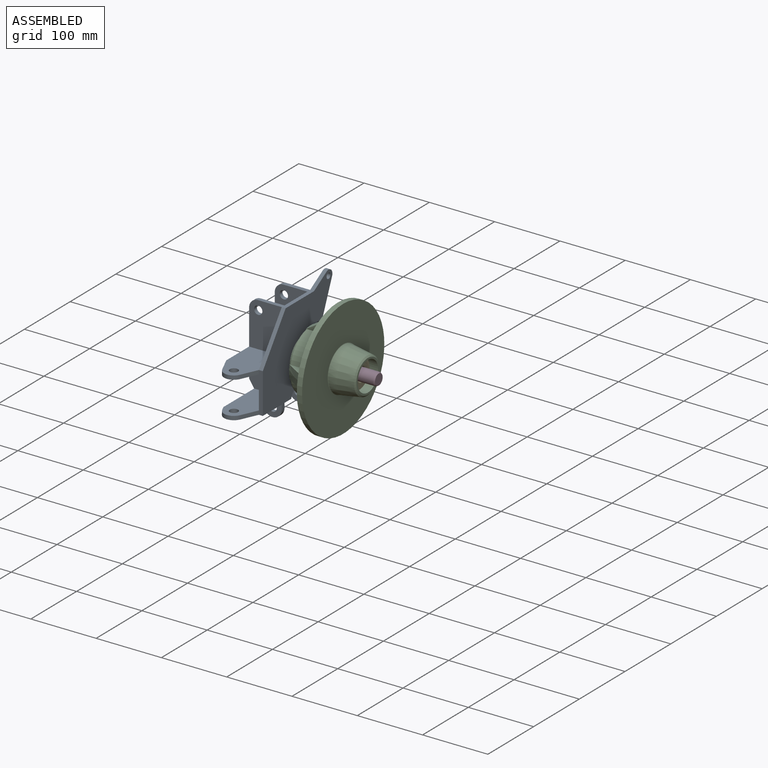
[diagram: assembled view]
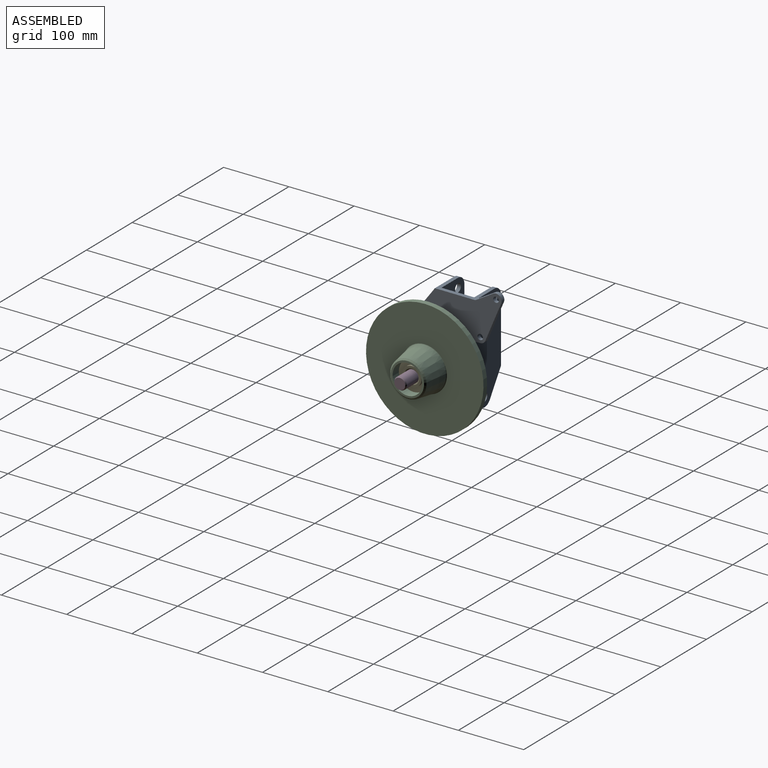
[diagram: assembled view, second angle]
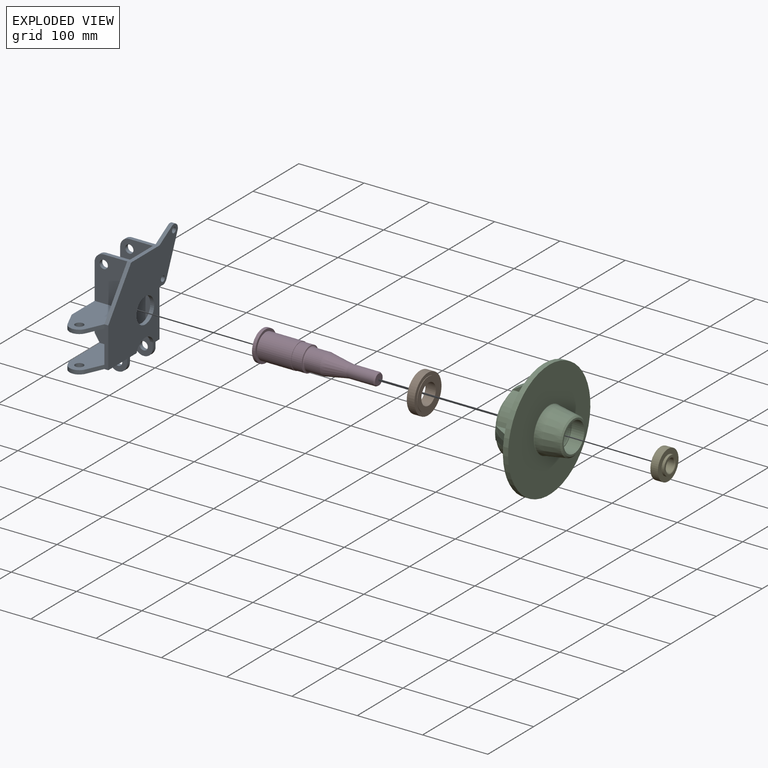
[diagram: exploded view]
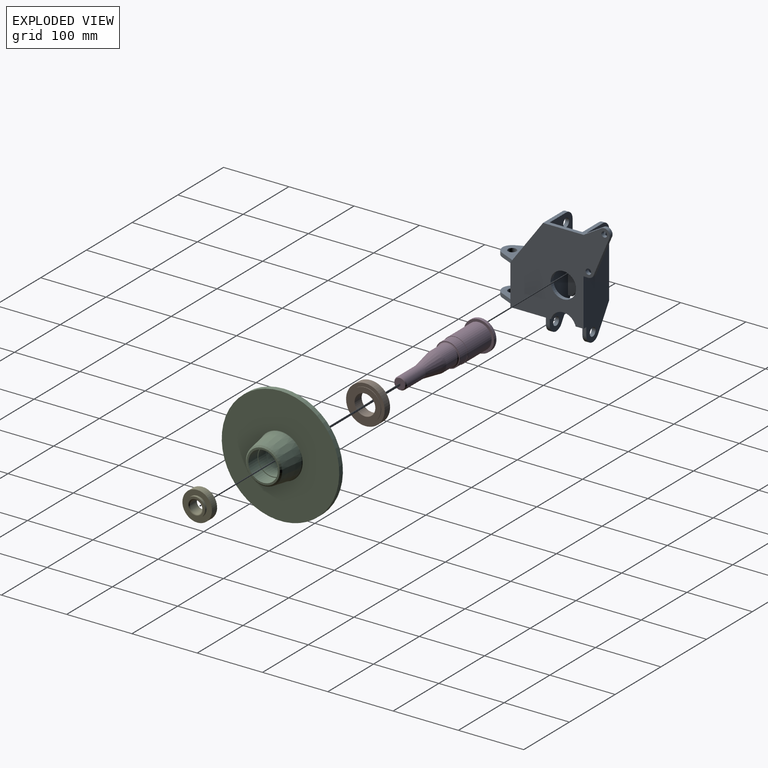
[diagram: exploded view, second angle]
ASSEMBLY  parts=5 mates=4
PART A: 59 faces, bbox 56x186.2x173.6 mm
  f0: plane 156x50mm, normal (0,1,0), area 6373.4mm2, adj f11,f12,f26,f31,f33,f39,f40,f41
  f1: plane 156x50mm, normal (0,-1,0), area 6373.4mm2, adj f12,f25,f26,f32,f34,f35,f36,f37
  f2: cylinder r=15mm len=27.36mm, axis (0,0,-1), area 206.5mm2, adj f3,f5,f29,f40,f48
  f3: plane 7.96x5.56mm, normal (-0.91,-0.41,0), area 24.3mm2, adj f2,f29,f40
  f4: plane 62x6mm, normal (0,-1,0), area 372mm2, adj f5,f14,f24,f30,f47,f48
  f5: plane 96.15x44.39mm, normal (0,0,-1), area 3163.4mm2, adj f2,f4,f15,f24,f26,f40,f41,f42
  f6: plane 50x50mm, normal (0,-1,0), area 2453.6mm2, adj f11,f28,f29,f30,f40
  f7: plane 156x56mm, normal (0,1,0), area 7264.6mm2, adj f10,f12,f13,f16,f24,f25,f32,f34
  f8: plane 68x50mm, normal (-1,0,0), area 1700mm2, adj f9,f14,f27
  f9: plane 68x50mm, normal (0,-1,0), area 3231.3mm2, adj f8,f11,f12,f27,f31,f33
  f10: plane 12.15x6mm, normal (0,0,-1), area 72.9mm2, adj f7,f15,f24,f26,f36
  f11: plane 98x56mm, normal (-1,0,0), area 888mm2, adj f0,f6,f9,f27,f28,f31,f40,f44
  f12: plane 62x42mm, normal (0,0,1), area 804mm2, adj f0,f1,f7,f9,f14,f20,f24,f26
  f13: plane 75.11x40.22mm, normal (-1,0,0), area 1744.4mm2, adj f7,f16,f17,f18,f19,f20,f21,f23
  f14: plane 68x50mm, normal (0,-0.81,0.59), area 506.4mm2, adj f4,f8,f12,f24
  f15: cylinder r=19.5mm len=37.7mm, axis (1,0,0), area 306.9mm2, adj f5,f10,f24,f26
  f16: plane 6.98x6mm, normal (0,0,-1), area 41.9mm2, adj f7,f13,f17,f24
  f17: cylinder r=8.5mm len=8.25mm, axis (1,0,0), area 62.4mm2, adj f13,f16,f18,f24
  f18: plane 57.66x24.13mm, normal (0,0.92,-0.39), area 375mm2, adj f13,f17,f19,f24
  f19: cylinder r=8.5mm len=12.88mm, axis (1,0,0), area 130.9mm2, adj f13,f18,f20,f24
  f20: plane 27.34x16.42mm, normal (0,-0.51,0.86), area 191.4mm2, adj f12,f13,f19,f24
  f21: cylinder r=4.25mm len=8.5mm, axis (1,0,0), area 160.2mm2, adj f13,f24
  f22: cylinder r=19.5mm len=39mm, axis (1,0,0), area 735.1mm2, adj f24,f26
  f23: cylinder r=4.25mm len=8.5mm, axis (1,0,0), area 160.2mm2, adj f13,f24
  f24: plane 152.22x147.63mm, normal (1,0,0), area 13005.4mm2, adj f4,f5,f7,f10,f12,f14,f15,f16
  f25: plane 98x6mm, normal (-1,0,0), area 588mm2, adj f1,f7,f32,f35
  f26: plane 130x50mm, normal (-1,0,0), area 4901mm2, adj f0,f1,f5,f10,f12,f15,f22
  f27: plane 84x50mm, normal (0,0,1), area 3520.4mm2, adj f8,f9,f11,f44,f45,f46,f47
  f28: plane 84x50mm, normal (0,0,-1), area 3520.4mm2, adj f6,f11,f30,f44,f45,f46,f47
  f29: plane 84x42.26mm, normal (0,0,1), area 3067mm2, adj f2,f3,f6,f30,f40,f48,f49
  f30: plane 50x50mm, normal (-1,0,0), area 2500mm2, adj f4,f6,f28,f29
  f31: cylinder r=14mm len=14mm, axis (0,-1,0), area 131.9mm2, adj f0,f9,f11,f12
  f32: cylinder r=14mm len=14mm, axis (0,-1,0), area 131.9mm2, adj f1,f7,f12,f25
  f33: cylinder r=6.35mm len=12.7mm, axis (0,1,0), area 239.4mm2, adj f0,f9
  f34: cylinder r=6.35mm len=12.7mm, axis (0,1,0), area 239.4mm2, adj f1,f7
  f35: plane 37.59x24.23mm, normal (-0.84,0,-0.54), area 268.3mm2, adj f1,f7,f25,f37
  f36: plane 12x6mm, normal (1,0,0), area 72mm2, adj f1,f7,f10,f37
  f37: cylinder r=14mm len=25.77mm, axis (0,1,0), area 215.8mm2, adj f1,f7,f35,f36
  f38: cylinder r=6.35mm len=12.7mm, axis (0,1,0), area 239.4mm2, adj f1,f7
  f39: cylinder r=14mm len=25.77mm, axis (0,1,0), area 215.8mm2, adj f0,f40,f41,f42
  f40: plane 81.76x37.6mm, normal (-0.84,0,-0.54), area 778.7mm2, adj f0,f2,f3,f5,f6,f11,f29,f39
  f41: plane 12x6mm, normal (1,0,0), area 72mm2, adj f0,f5,f39,f42
  f42: plane 38.39x26mm, normal (0,-1,0), area 602.6mm2, adj f5,f39,f40,f41,f43
  f43: cylinder r=6.35mm len=12.7mm, axis (0,1,0), area 239.4mm2, adj f0,f42
  f44: plane 25.16x11.32mm, normal (-0.91,-0.41,0), area 165.5mm2, adj f11,f27,f28,f45
  f45: cylinder r=15mm len=27.36mm, axis (0,0,1), area 206.6mm2, adj f27,f28,f44,f47
  f46: cylinder r=6.35mm len=12.7mm, axis (0,0,1), area 239.4mm2, adj f27,f28
  f47: plane 25.16x11.32mm, normal (0.91,-0.41,0), area 165.5mm2, adj f4,f27,f28,f45
  f48: plane 25.16x11.32mm, normal (0.91,-0.41,0), area 165.5mm2, adj f2,f4,f5,f29
  f49: cylinder r=6.35mm len=12.7mm, axis (0,0,-1), area 239.4mm2, adj f5,f29
  f50: plane 6.8x6mm, normal (0,0,-1), area 40.8mm2, adj f1,f55,f57,f58
  f51: plane 6.8x6mm, normal (0,0,1), area 40.8mm2, adj f1,f52,f57,f58
  f52: cylinder r=19.5mm len=36.4mm, axis (-1,0,0), area 281.6mm2, adj f51,f53,f57,f58
  f53: plane 6.8x6mm, normal (0,0,1), area 40.8mm2, adj f0,f52,f57,f58
  f54: plane 6.8x6mm, normal (0,0,-1), area 40.8mm2, adj f0,f55,f57,f58
  f55: cylinder r=19.5mm len=36.4mm, axis (-1,0,0), area 281.6mm2, adj f50,f54,f57,f58
  f56: cylinder r=19.5mm len=39mm, axis (-1,0,0), area 735.1mm2, adj f57,f58
  f57: plane 76x50mm, normal (1,0,0), area 1944.9mm2, adj f0,f1,f50,f51,f52,f53,f54,f55
  f58: plane 76x50mm, normal (-1,0,0), area 1944.9mm2, adj f0,f1,f50,f51,f52,f53,f54,f55
PART B: 9 faces, bbox 16.8x59.1x59.1 mm
  f0: plane 41.92x41.92mm, normal (-1,0,0), area 376mm2, adj f7,f8
  f1: cylinder r=15.88mm len=31.75mm, axis (-1,0,0), area 1472.6mm2, adj f2,f8
  f2: plane 48.55x48.55mm, normal (1,0,0), area 1059.4mm2, adj f1,f3
  f3: cylinder r=24.27mm len=48.55mm, axis (-1,0,0), area 135.6mm2, adj f2,f4
  f4: plane 59.13x59.13mm, normal (1,0,0), area 895mm2, adj f3,f5
  f5: cylinder r=29.57mm len=59.13mm, axis (-1,0,0), area 2194.1mm2, adj f4,f6
  f6: plane 59.13x59.13mm, normal (-1,0,0), area 1366.3mm2, adj f5,f7
  f7: cylinder r=20.96mm len=41.92mm, axis (-1,0,0), area 535.1mm2, adj f0,f6
  f8: torus R=17.88mm, axis (1,0,0), area 327.7mm2, adj f0,f1
PART C: 61 faces, bbox 97.2x180.2x180.2 mm
  f0: cone r=47mm half-angle=30.7deg, axis (1,0,0), area 925.6mm2, adj f4,f35,f39,f40,f41,f42
  f1: cone r=47mm half-angle=30.7deg, axis (1,0,0), area 925.6mm2, adj f4,f32,f36,f45,f47,f49
  f2: cone r=47mm half-angle=30.7deg, axis (1,0,0), area 925.6mm2, adj f4,f30,f33,f53,f54,f55
  f3: cone r=47mm half-angle=30.7deg, axis (1,0,0), area 925.6mm2, adj f4,f28,f38,f46,f48,f50
  f4: plane 94x94mm, normal (-1,0,0), area 2900.8mm2, adj f0,f1,f2,f3,f5,f20,f22,f24
  f5: cylinder r=33mm len=66mm, axis (-1,0,0), area 1866.1mm2, adj f4,f6
  f6: plane 66x66mm, normal (-1,0,0), area 673.8mm2, adj f5,f7
  f7: cylinder r=29.57mm len=59.15mm, axis (-1,0,0), area 4552.3mm2, adj f6,f8
  f8: plane 59.15x59.15mm, normal (-1,0,0), area 284.4mm2, adj f7,f9
  f9: cylinder r=28mm len=56mm, axis (-1,0,0), area 2638.9mm2, adj f8,f10
  f10: cone r=21.5mm half-angle=17.2deg, axis (-1,0,0), area 3418.5mm2, adj f9,f11
  f11: cylinder r=21.5mm len=43mm, axis (-1,0,0), area 2229mm2, adj f10,f12
  f12: plane 45.25x45.25mm, normal (1,0,0), area 155.6mm2, adj f11,f13
  f13: cylinder r=22.62mm len=45.25mm, axis (-1,0,0), area 2842.8mm2, adj f12,f14
  f14: plane 50.95x50.95mm, normal (1,0,0), area 431.3mm2, adj f13,f19
  f15: cone r=33.43mm half-angle=8.9deg, axis (-1,0,0), area 6833.7mm2, adj f19,f60
  f16: plane 180x180mm, normal (1,0,0), area 21753.2mm2, adj f17,f60
  f17: cylinder r=90mm len=180mm, axis (-1,0,0), area 4523.9mm2, adj f16,f18
  f18: plane 180x180mm, normal (-1,0,0), area 14195.3mm2, adj f17,f40,f41,f42,f43,f44,f45,f46
  f19: cone r=27.79mm half-angle=49.5deg, axis (-1,0,0), area 508.6mm2, adj f14,f15
  f20: cylinder r=4mm len=20mm, axis (-1,0,0), area 502.7mm2, adj f4,f21
  f21: plane 8x8mm, normal (-1,0,0), area 50.3mm2, adj f20
  f22: cylinder r=4mm len=20mm, axis (-1,0,0), area 502.7mm2, adj f4,f23
  f23: plane 8x8mm, normal (-1,0,0), area 50.3mm2, adj f22
  f24: cylinder r=4mm len=20mm, axis (-1,0,0), area 502.7mm2, adj f4,f25
  f25: plane 8x8mm, normal (-1,0,0), area 50.3mm2, adj f24
  f26: cylinder r=4mm len=20mm, axis (-1,0,0), area 502.7mm2, adj f4,f27
  f27: plane 8x8mm, normal (-1,0,0), area 50.3mm2, adj f26
  f28: plane 37.2x24.53mm, normal (0,-1,0), area 413.9mm2, adj f3,f4,f29,f50,f59
  f29: cylinder r=47mm len=35.92mm, axis (-1,0,0), area 1878.6mm2, adj f28,f30,f52,f59
  f30: plane 37.2x24.53mm, normal (0,0,1), area 413.9mm2, adj f2,f4,f29,f54,f59
  f31: cylinder r=47mm len=35.92mm, axis (-1,0,0), area 1878.6mm2, adj f32,f33,f51,f56
  f32: plane 37.2x24.53mm, normal (0,-1,0), area 413.9mm2, adj f1,f4,f31,f49,f56
  f33: plane 37.2x24.53mm, normal (0,0,-1), area 413.9mm2, adj f2,f4,f31,f53,f56
  f34: cylinder r=47mm len=35.92mm, axis (-1,0,0), area 1878.6mm2, adj f35,f36,f43,f57
  f35: plane 37.2x24.53mm, normal (0,0,-1), area 413.9mm2, adj f0,f4,f34,f41,f57
  f36: plane 37.2x24.53mm, normal (0,1,0), area 413.9mm2, adj f1,f4,f34,f45,f57
  f37: cylinder r=47mm len=35.92mm, axis (-1,0,0), area 1878.6mm2, adj f38,f39,f44,f58
  f38: plane 37.2x24.53mm, normal (0,1,0), area 413.9mm2, adj f3,f4,f37,f46,f58
  f39: plane 37.2x24.53mm, normal (0,0,1), area 413.9mm2, adj f0,f4,f37,f42,f58
  f40: torus R=74.75mm, axis (-1,0,0), area 131.5mm2, adj f0,f18,f41,f42
  f41: cylinder r=5mm len=27.3mm, axis (0,1,0), area 181.5mm2, adj f0,f18,f35,f40,f43
  f42: cylinder r=5mm len=27.3mm, axis (0,-1,0), area 181.5mm2, adj f0,f18,f39,f40,f44
  f43: torus R=52mm, axis (-1,0,0), area 414.7mm2, adj f18,f34,f41,f45
  f44: torus R=52mm, axis (-1,0,0), area 414.7mm2, adj f18,f37,f42,f46
  f45: cylinder r=5mm len=27.3mm, axis (0,0,1), area 181.5mm2, adj f1,f18,f36,f43,f47
  f46: cylinder r=5mm len=27.3mm, axis (0,0,1), area 181.5mm2, adj f3,f18,f38,f44,f48
  f47: torus R=74.75mm, axis (-1,0,0), area 131.5mm2, adj f1,f18,f45,f49
  f48: torus R=74.75mm, axis (-1,0,0), area 131.5mm2, adj f3,f18,f46,f50
  f49: cylinder r=5mm len=27.3mm, axis (0,0,-1), area 181.5mm2, adj f1,f18,f32,f47,f51
  f50: cylinder r=5mm len=27.3mm, axis (0,0,-1), area 181.5mm2, adj f3,f18,f28,f48,f52
  f51: torus R=52mm, axis (-1,0,0), area 414.7mm2, adj f18,f31,f49,f53
  f52: torus R=52mm, axis (-1,0,0), area 414.7mm2, adj f18,f29,f50,f54
  f53: cylinder r=5mm len=27.3mm, axis (0,1,0), area 181.5mm2, adj f2,f18,f33,f51,f55
  f54: cylinder r=5mm len=27.3mm, axis (0,-1,0), area 181.5mm2, adj f2,f18,f30,f52,f55
  f55: torus R=74.75mm, axis (-1,0,0), area 131.5mm2, adj f2,f18,f53,f54
  f56: torus R=45mm, axis (-1,0,0), area 164.6mm2, adj f4,f31,f32,f33
  f57: torus R=45mm, axis (-1,0,0), area 164.6mm2, adj f4,f34,f35,f36
  f58: torus R=45mm, axis (-1,0,0), area 164.6mm2, adj f4,f37,f38,f39
  f59: torus R=45mm, axis (-1,0,0), area 164.6mm2, adj f4,f28,f29,f30
  f60: torus R=34.29mm, axis (1,0,0), area 299.6mm2, adj f15,f16
PART D: 17 faces, bbox 178x47x47 mm
  f0: cone r=9.52mm half-angle=30deg, axis (-1,0,0), area 129.8mm2, adj f6,f7
  f1: cone r=23.5mm half-angle=45deg, axis (-1,0,0), area 41.6mm2, adj f14,f15
  f2: cone r=23.3mm half-angle=45deg, axis (1,0,0), area 41.6mm2, adj f15,f16
  f3: cone r=19.5mm half-angle=45deg, axis (-1,0,0), area 34.5mm2, adj f12,f13
  f4: cone r=18.77mm half-angle=45deg, axis (-1,0,0), area 33.2mm2, adj f10,f11
  f5: torus R=17.87mm, axis (-1,0,0), area 327.7mm2, adj f9,f10
  f6: plane 16.74x16.74mm, normal (1,0,0), area 220mm2, adj f0
  f7: cylinder r=9.52mm len=41mm, axis (1,0,0), area 2453.1mm2, adj f0,f8
  f8: cone r=15.87mm half-angle=10deg, axis (-1,0,0), area 2916.4mm2, adj f7,f9
  f9: cylinder r=15.87mm len=31.75mm, axis (1,0,0), area 2393.5mm2, adj f5,f8
  f10: plane 37.15x37.15mm, normal (1,0,0), area 80.4mm2, adj f4,f5
  f11: cylinder r=18.77mm len=37.55mm, axis (1,0,0), area 1863.9mm2, adj f4,f12
  f12: plane 38.6x38.6mm, normal (1,0,0), area 62.8mm2, adj f3,f11
  f13: cylinder r=19.5mm len=51.8mm, axis (1,0,0), area 6346.6mm2, adj f3,f14
  f14: plane 46.6x46.6mm, normal (1,0,0), area 510.9mm2, adj f1,f13
  f15: cylinder r=23.5mm len=47mm, axis (1,0,0), area 679.2mm2, adj f1,f2
  f16: plane 46.6x46.6mm, normal (-1,0,0), area 1705.5mm2, adj f2
PART E: 10 faces, bbox 16.6x49x49 mm
  f0: plane 29.22x29.22mm, normal (1,0,0), area 253.1mm2, adj f7,f8
  f1: cylinder r=9.53mm len=19.05mm, axis (1,0,0), area 876mm2, adj f2,f8
  f2: plane 35.85x35.85mm, normal (-1,0,0), area 724.3mm2, adj f1,f3
  f3: cylinder r=17.92mm len=35.85mm, axis (1,0,0), area 85.8mm2, adj f2,f4
  f4: plane 43.24x43.24mm, normal (-1,0,0), area 458.9mm2, adj f3,f9
  f5: cylinder r=22.62mm len=45.24mm, axis (1,0,0), area 1572.5mm2, adj f6,f9
  f6: plane 45.24x45.24mm, normal (1,0,0), area 936.9mm2, adj f5,f7
  f7: cylinder r=14.61mm len=29.22mm, axis (1,0,0), area 349.7mm2, adj f0,f6
  f8: torus R=11.53mm, axis (-1,0,0), area 202.4mm2, adj f0,f1
  f9: torus R=21.62mm, axis (1,0,0), area 219.6mm2, adj f4,f5
PLACE A t=(-154.7,-33.44,56.1)mm
PLACE B t=(-114.39,-33.44,56.1)mm
PLACE C t=(-86.3,-33.44,56.1)mm
PLACE D t=(-147.44,-33.44,56.1)mm
PLACE E t=(-84.37,-33.44,56.1)mm
MATE slider C.f0 <-> B.f1  axis (-1,0,0) through (-122.82,-33.44,56.1)mm
MATE slider B.f1 <-> D.f0  axis (-1,0,0) through (-138.7,-33.44,56.1)mm
MATE slider E.f9 <-> D.f0  axis (-1,0,0) through (-76.7,-33.44,56.1)mm
MATE cylindrical A.f56 <-> D.f0  axis (-1,0,0) through (-206.7,-33.44,56.1)mm
